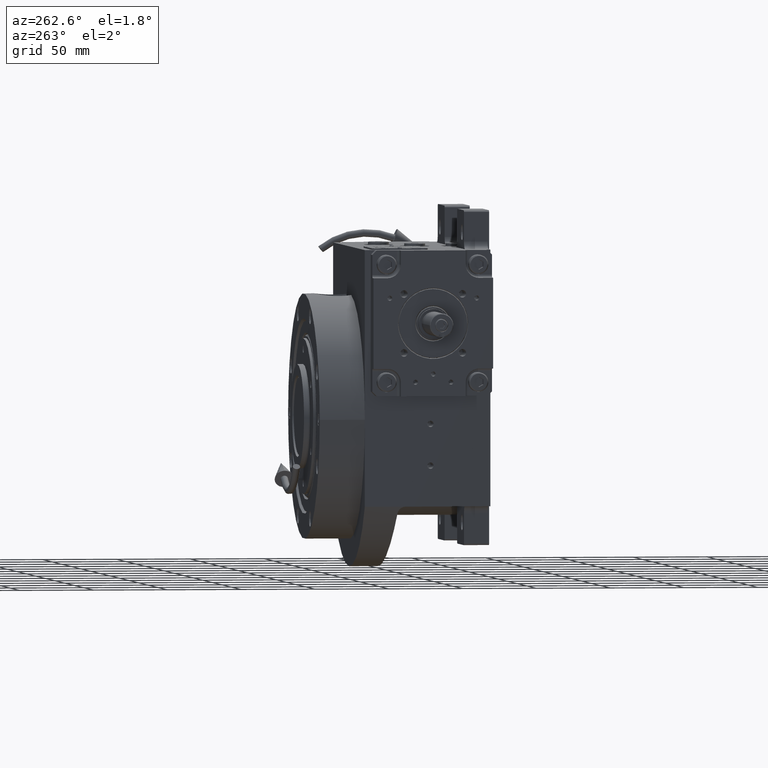
[diagram: clean part render]
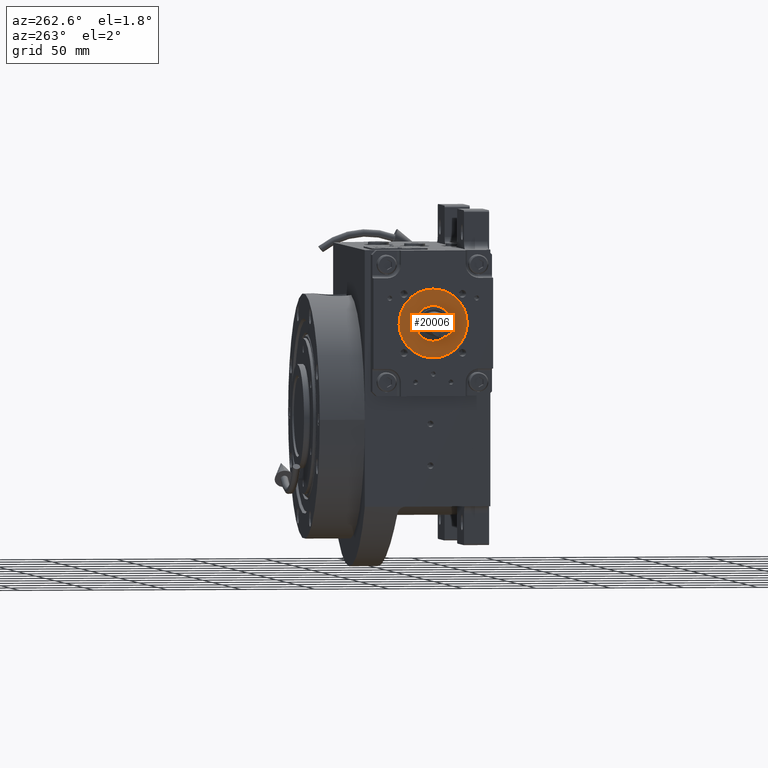
[diagram: same view with one face highlighted and labeled with its STEP entity id]
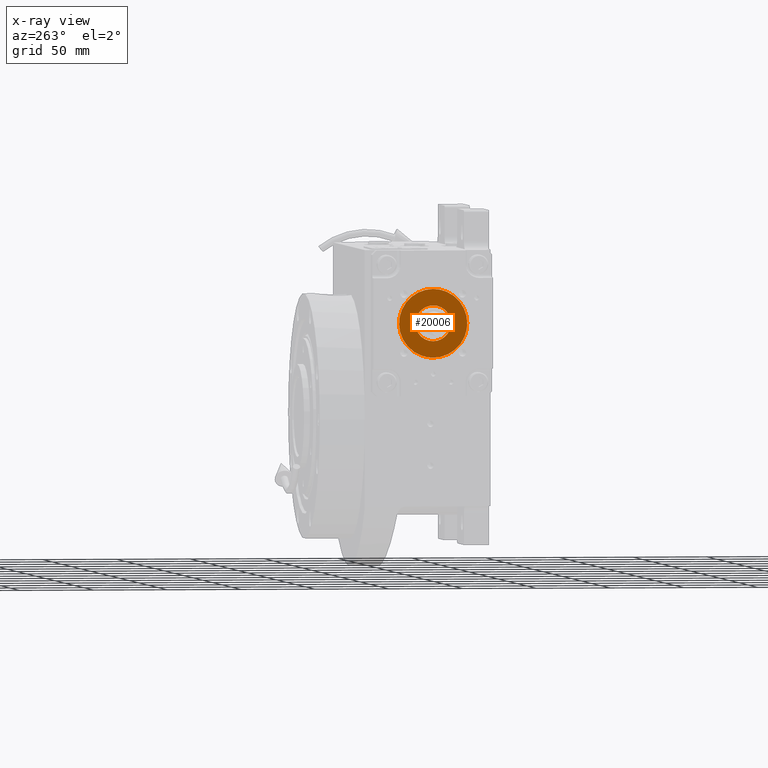
[diagram: x-ray of the same camera — body ghosted, the highlighted face saturated]
A machine part, auxiliary view. The second image highlights one B-rep face of the part: STEP entity #20006.
The next image is the same camera in x-ray: the body ghosted, the highlighted face saturated — about 0% of this face is hidden behind the body in this view.
In plain terms, the highlighted planar face has unit normal (1, -0, 0).
Its self-contained STEP definition (entity closure, byte-faithful):
#3938 = CARTESIAN_POINT ( 'NONE',  ( -2.619432448724978713E-13, 7.000000000000069278, -23.09585494913712367 ) ) ;
#6283 = CIRCLE ( 'NONE', #44211, 12.04009600442784844 ) ;
#7552 = CARTESIAN_POINT ( 'NONE',  ( -23.09585401869729182, 6.999999542325357815, -2.173323981794041967E-08 ) ) ;
#12038 = CARTESIAN_POINT ( 'NONE',  ( -2.619432448724978713E-13, 7.000000000000069278, -23.09585494913712367 ) ) ;
#12299 = VERTEX_POINT ( 'NONE', #75282 ) ;
#15986 = CARTESIAN_POINT ( 'NONE',  ( -23.09585401869729182, 6.999999542325357815, -2.173323981794041967E-08 ) ) ;
#18368 =( BOUNDED_CURVE ( )  B_SPLINE_CURVE ( 3, ( #34325, #71387, #64460, #12038 ),
 .UNSPECIFIED., .F., .T. ) 
 B_SPLINE_CURVE_WITH_KNOTS ( ( 4, 4 ),
 ( 5.774591035009672524, 7.345387430054536537 ),
 .UNSPECIFIED. ) 
 CURVE ( )  GEOMETRIC_REPRESENTATION_ITEM ( )  RATIONAL_B_SPLINE_CURVE ( ( 1.000000000000000000, 0.8047378380376930540, 0.8047378380376930540, 1.000000000000000000 ) ) 
 REPRESENTATION_ITEM ( '' )  );
#19243 = CARTESIAN_POINT ( 'NONE',  ( -23.09585401869729182, 6.999999542325357815, -2.173323981794041967E-08 ) ) ;
#20006 = ADVANCED_FACE ( 'NONE', ( #21997, #36370 ), #29415, .F. ) ;
#21135 = VERTEX_POINT ( 'NONE', #28446 ) ;
#21997 = FACE_OUTER_BOUND ( 'NONE', #95510, .T. ) ;
#22887 = CARTESIAN_POINT ( 'NONE',  ( 23.09585401869745169, 6.999999542325801904, 2.173331782437693210E-08 ) ) ;
#24296 = CARTESIAN_POINT ( 'NONE',  ( 0.000000000000000000, 7.000000000000006217, 3.669563346828587115E-14 ) ) ;
#27815 = AXIS2_PLACEMENT_3D ( 'NONE', #79034, #72603, #87922 ) ;
#28446 = CARTESIAN_POINT ( 'NONE',  ( -12.04009600442772232, 7.000000000000006217, 1.125501430241564578E-14 ) ) ;
#29415 = PLANE ( 'NONE',  #74213 ) ;
#30301 = CARTESIAN_POINT ( 'NONE',  ( -8.974545794016020039E-07, 6.999999999999943157, 23.09585494913720893 ) ) ;
#31221 = DIRECTION ( 'NONE',  ( -2.153350692136835555E-17, 1.000000000000000000, 5.115350721226509550E-15 ) ) ;
#32417 = EDGE_CURVE ( 'NONE', #61003, #12299, #18368, .T. ) ;
#34109 = CARTESIAN_POINT ( 'NONE',  ( -13.52923841247535819, 7.000000000000130562, -23.09585443615135603 ) ) ;
#34325 = CARTESIAN_POINT ( 'NONE',  ( 23.09585401869745169, 6.999999542325801904, 2.173331782437693210E-08 ) ) ;
#36370 = FACE_BOUND ( 'NONE', #65132, .T. ) ;
#37753 = CARTESIAN_POINT ( 'NONE',  ( -23.09585573493670196, 7.000000000000073719, 13.52923849051282446 ) ) ;
#41761 =( BOUNDED_CURVE ( )  B_SPLINE_CURVE ( 3, ( #3938, #34109, #64247, #19243 ),
 .UNSPECIFIED., .F., .F. ) 
 B_SPLINE_CURVE_WITH_KNOTS ( ( 4, 4 ),
 ( 1.062202122874949861, 2.632998440204151525 ),
 .UNSPECIFIED. ) 
 CURVE ( )  GEOMETRIC_REPRESENTATION_ITEM ( )  RATIONAL_B_SPLINE_CURVE ( ( 1.000000000000000000, 0.8047378563554508091, 0.8047378563554508091, 1.000000000000000000 ) ) 
 REPRESENTATION_ITEM ( '' )  );
#43787 = DIRECTION ( 'NONE',  ( -2.052305267934737279E-16, -1.000000000000000000, -5.115350721226539526E-15 ) ) ;
#44211 = AXIS2_PLACEMENT_3D ( 'NONE', #24296, #31221, #52986 ) ;
#47710 = EDGE_CURVE ( 'NONE', #96560, #21135, #73603, .T. ) ;
#49268 =( BOUNDED_CURVE ( )  B_SPLINE_CURVE ( 3, ( #7552, #37753, #67884, #30301, #60467, #90612, #22887 ),
 .UNSPECIFIED., .F., .F. ) 
 B_SPLINE_CURVE_WITH_KNOTS ( ( 4, 3, 4 ),
 ( 2.632998397732654983, 4.203794753919688709, 5.774591110106721992 ),
 .UNSPECIFIED. ) 
 CURVE ( )  GEOMETRIC_REPRESENTATION_ITEM ( )  RATIONAL_B_SPLINE_CURVE ( ( 1.000000000000000000, 0.8047378471965718205, 0.8047378471965718205, 1.000000000000000000, 0.8047378471965718205, 0.8047378471965718205, 1.000000000000000000 ) ) 
 REPRESENTATION_ITEM ( '' )  );
#52986 = DIRECTION ( 'NONE',  ( 1.000000000000000000, 0.000000000000000000, 1.924633060802948895E-15 ) ) ;
#53112 = VERTEX_POINT ( 'NONE', #15986 ) ;
#54361 = EDGE_CURVE ( 'NONE', #53112, #61003, #49268, .T. ) ;
#59097 = DIRECTION ( 'NONE',  ( -1.000000000000000000, 2.052305267934839584E-16, -1.998401444325262051E-15 ) ) ;
#60076 = CARTESIAN_POINT ( 'NONE',  ( 0.000000000000000000, 7.000000000000006217, 3.580745504858574592E-14 ) ) ;
#60467 = CARTESIAN_POINT ( 'NONE',  ( 13.52923793185786749, 6.999999999999880984, 23.09585496186828379 ) ) ;
#61003 = VERTEX_POINT ( 'NONE', #83364 ) ;
#61797 = ORIENTED_EDGE ( 'NONE', *, *, #32417, .T. ) ;
#62942 = EDGE_CURVE ( 'NONE', #12299, #53112, #41761, .T. ) ;
#64247 = CARTESIAN_POINT ( 'NONE',  ( -23.09585468350324433, 7.000000000000148326, -13.52923811714204660 ) ) ;
#64460 = CARTESIAN_POINT ( 'NONE',  ( 13.52923924614952078, 7.000000000000008882, -23.09585546212293039 ) ) ;
#65132 = EDGE_LOOP ( 'NONE', ( #76995, #84824 ) ) ;
#67884 = CARTESIAN_POINT ( 'NONE',  ( -13.52923972676703457, 7.000000000000004441, 23.09585493640613052 ) ) ;
#71042 = CARTESIAN_POINT ( 'NONE',  ( 12.04009600442777739, 7.000000000000477840, 5.986840029365013895E-14 ) ) ;
#71387 = CARTESIAN_POINT ( 'NONE',  ( 23.09585573493669841, 6.999999999999936939, -13.52923890735007717 ) ) ;
#72603 = DIRECTION ( 'NONE',  ( 2.153350692136835555E-17, -1.000000000000000000, -5.115350721226509550E-15 ) ) ;
#73603 = CIRCLE ( 'NONE', #27815, 12.04009600442786798 ) ;
#74213 = AXIS2_PLACEMENT_3D ( 'NONE', #60076, #43787, #59097 ) ;
#75282 = CARTESIAN_POINT ( 'NONE',  ( -2.619432448724978713E-13, 7.000000000000069278, -23.09585494913712367 ) ) ;
#76995 = ORIENTED_EDGE ( 'NONE', *, *, #78891, .F. ) ;
#77288 = ORIENTED_EDGE ( 'NONE', *, *, #54361, .T. ) ;
#78891 = EDGE_CURVE ( 'NONE', #96560, #21135, #6283, .T. ) ;
#79034 = CARTESIAN_POINT ( 'NONE',  ( 0.000000000000000000, 7.000000000000006217, 3.491927662888562069E-14 ) ) ;
#83364 = CARTESIAN_POINT ( 'NONE',  ( 23.09585401869745169, 6.999999542325801904, 2.173331782437693210E-08 ) ) ;
#84824 = ORIENTED_EDGE ( 'NONE', *, *, #47710, .T. ) ;
#87922 = DIRECTION ( 'NONE',  ( 1.000000000000000000, 0.000000000000000000, 2.072169827847578757E-15 ) ) ;
#90612 = CARTESIAN_POINT ( 'NONE',  ( 23.09585468350326209, 6.999999999999864109, 13.52923853397944143 ) ) ;
#95510 = EDGE_LOOP ( 'NONE', ( #61797, #96606, #77288 ) ) ;
#96560 = VERTEX_POINT ( 'NONE', #71042 ) ;
#96606 = ORIENTED_EDGE ( 'NONE', *, *, #62942, .T. ) ;